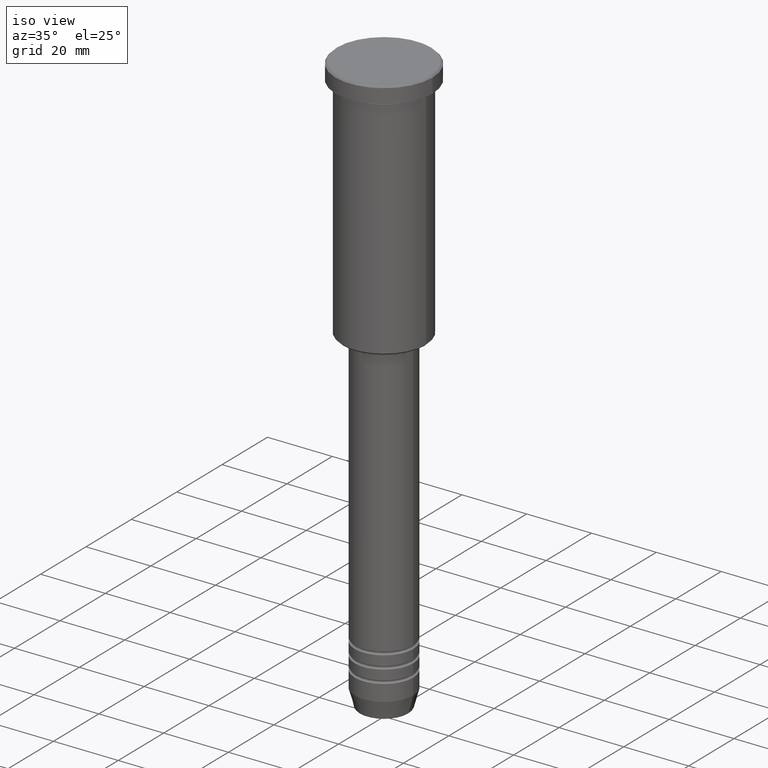
[diagram: clean part render]
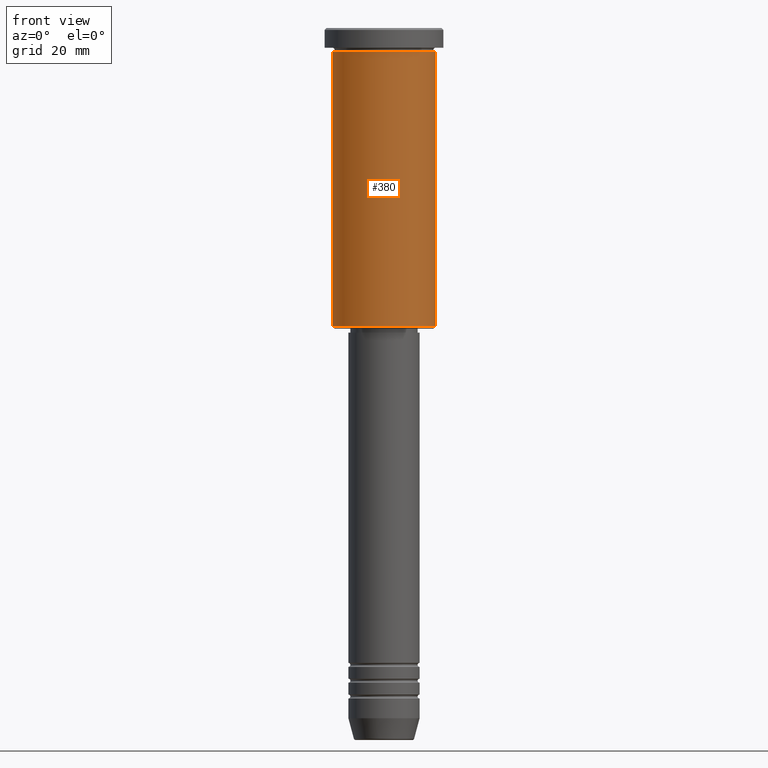
[diagram: tour spotlight — one face highlighted and labeled with its STEP entity id]
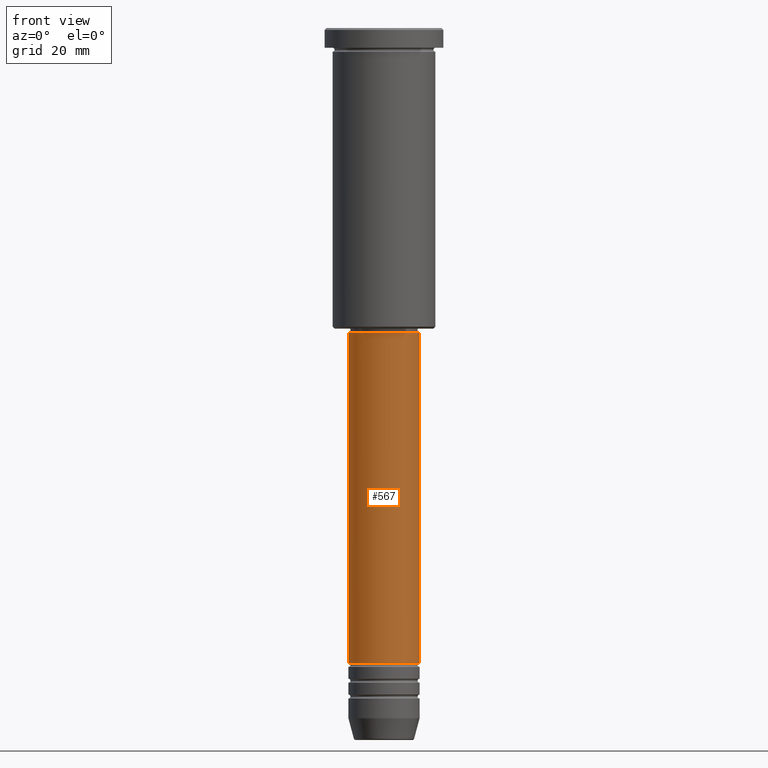
[diagram: tour spotlight — one face highlighted and labeled with its STEP entity id]
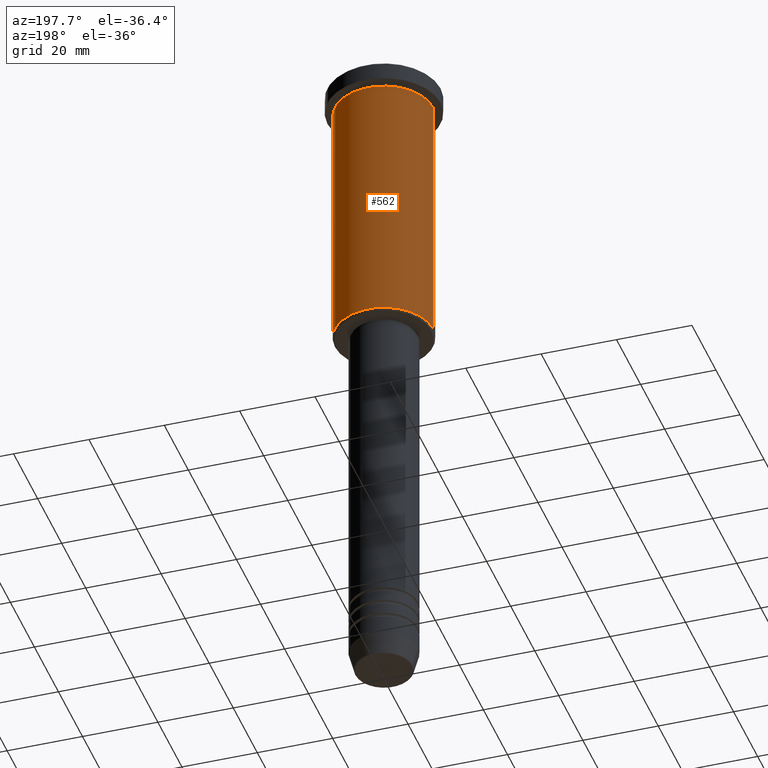
[diagram: tour spotlight — one face highlighted and labeled with its STEP entity id]
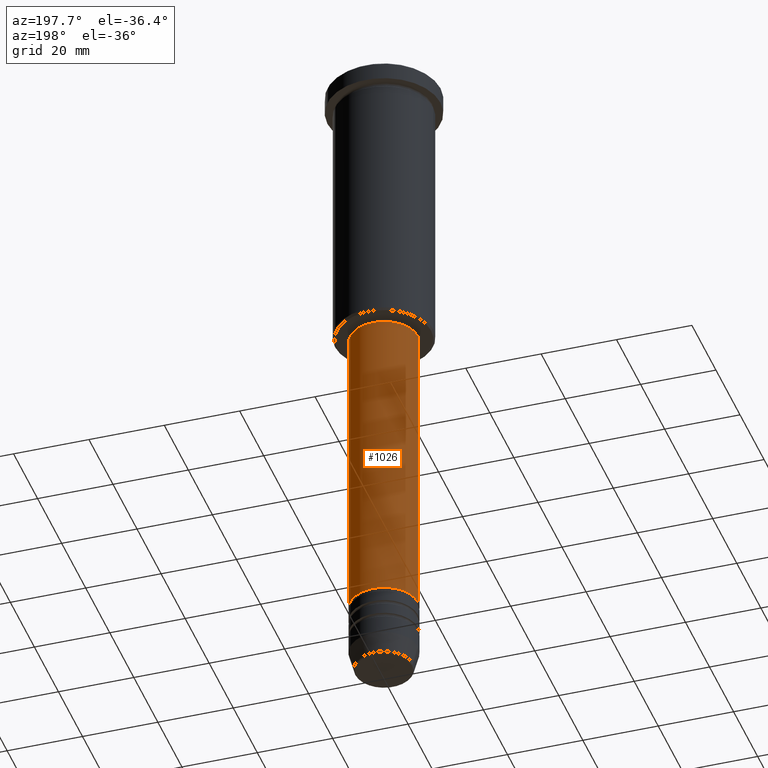
[diagram: tour spotlight — one face highlighted and labeled with its STEP entity id]
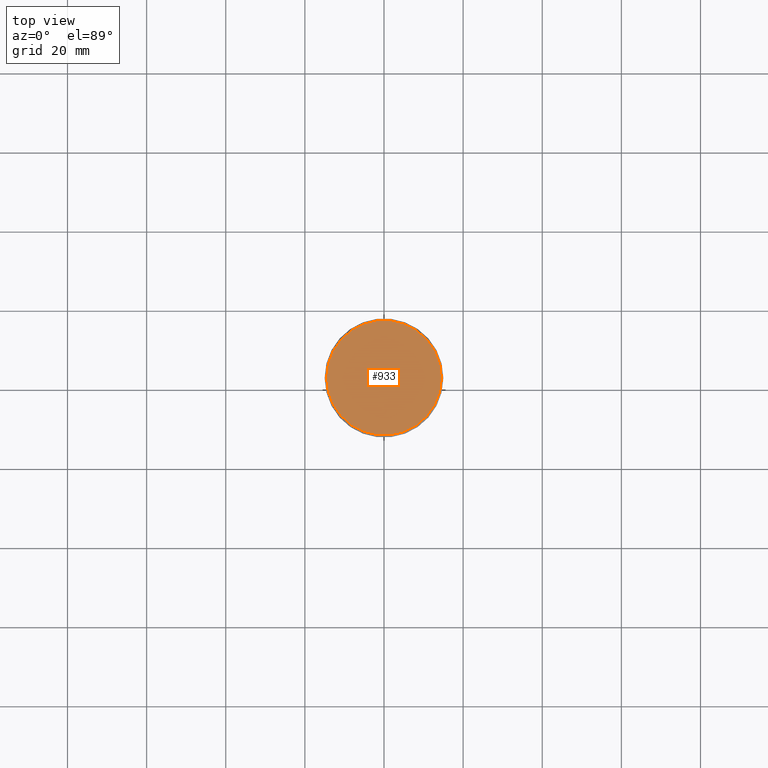
[diagram: tour spotlight — one face highlighted and labeled with its STEP entity id]
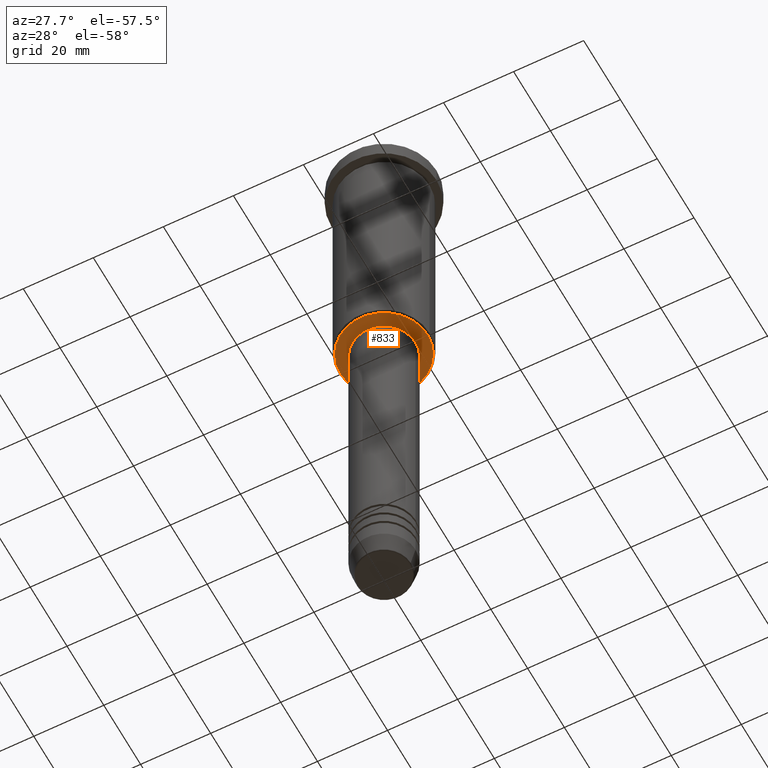
[diagram: tour spotlight — one face highlighted and labeled with its STEP entity id]
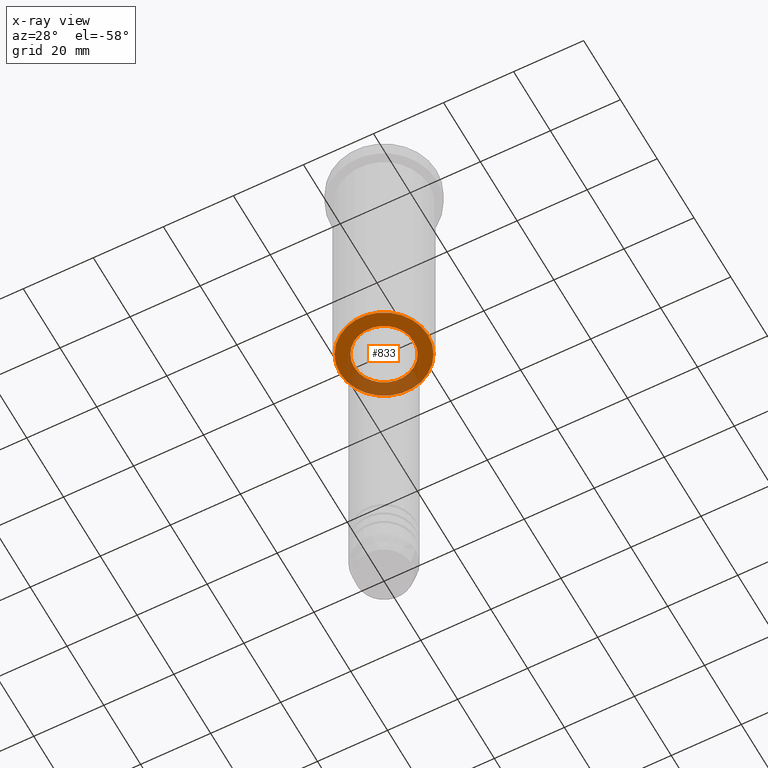
[diagram: x-ray of the same camera — body ghosted, this tour face saturated]
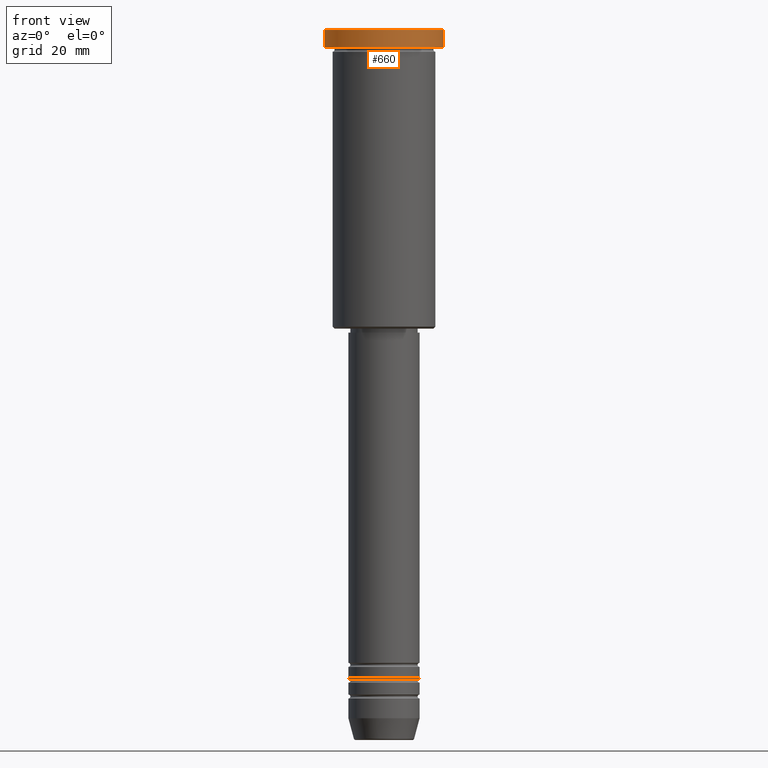
[diagram: tour spotlight — one face highlighted and labeled with its STEP entity id]
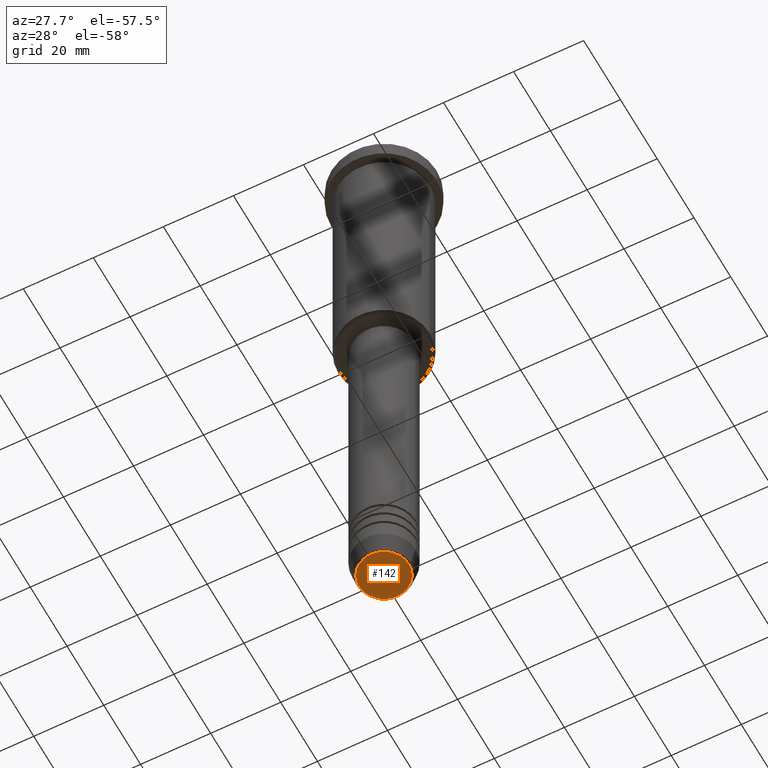
[diagram: tour spotlight — one face highlighted and labeled with its STEP entity id]
A machine part: a face-by-face anatomy tour. The part has 43 B-rep faces; the first image is the clean iso view, then the 8 largest visible faces are spotlighted one at a time (largest first), each with its STEP entity span.

Face 1 — front view, entity #380. In plain terms, the highlighted cylindrical surface (partial cylindrical patch) has radius 13 mm, axis along (-0, -0, 1).
Definition (entity closure, byte-faithful):
#74 = DIRECTION ( 'NONE',  ( -0.000000000000000000, -0.000000000000000000, 1.000000000000000000 ) ) ;
#79 = ORIENTED_EDGE ( 'NONE', *, *, #752, .T. ) ;
#109 = EDGE_CURVE ( 'NONE', #390, #455, #1153, .T. ) ;
#122 = EDGE_LOOP ( 'NONE', ( #1155, #926, #79, #381 ) ) ;
#225 = DIRECTION ( 'NONE',  ( -0.000000000000000000, -0.000000000000000000, 1.000000000000000000 ) ) ;
#345 = DIRECTION ( 'NONE',  ( -1.000000000000000000, 0.000000000000000000, 0.000000000000000000 ) ) ;
#380 = ADVANCED_FACE ( 'NONE', ( #569 ), #490, .T. ) ;
#381 = ORIENTED_EDGE ( 'NONE', *, *, #1086, .F. ) ;
#385 = CARTESIAN_POINT ( 'NONE',  ( -13.00000000000000178, 1.592040838891559293E-15, -75.50000000000001421 ) ) ;
#390 = VERTEX_POINT ( 'NONE', #385 ) ;
#455 = VERTEX_POINT ( 'NONE', #850 ) ;
#482 = CARTESIAN_POINT ( 'NONE',  ( 0.000000000000000000, 0.000000000000000000, 0.000000000000000000 ) ) ;
#490 = CYLINDRICAL_SURFACE ( 'NONE', #904, 13.00000000000000178 ) ;
#569 = FACE_OUTER_BOUND ( 'NONE', #122, .T. ) ;
#586 = DIRECTION ( 'NONE',  ( -0.000000000000000000, -0.000000000000000000, 1.000000000000000000 ) ) ;
#614 = CARTESIAN_POINT ( 'NONE',  ( -13.00000000000000178, 1.592040838891559293E-15, 0.000000000000000000 ) ) ;
#636 = VECTOR ( 'NONE', #1103, 1000.000000000000000 ) ;
#687 = CIRCLE ( 'NONE', #997, 13.00000000000000178 ) ;
#697 = CARTESIAN_POINT ( 'NONE',  ( 13.00000000000000178, 0.000000000000000000, 0.000000000000000000 ) ) ;
#711 = EDGE_CURVE ( 'NONE', #390, #726, #725, .T. ) ;
#725 = LINE ( 'NONE', #614, #636 ) ;
#726 = VERTEX_POINT ( 'NONE', #896 ) ;
#739 = CARTESIAN_POINT ( 'NONE',  ( 0.000000000000000000, 0.000000000000000000, -5.999999999999999112 ) ) ;
#752 = EDGE_CURVE ( 'NONE', #455, #1051, #1090, .T. ) ;
#809 = CARTESIAN_POINT ( 'NONE',  ( 0.000000000000000000, 0.000000000000000000, -75.50000000000001421 ) ) ;
#850 = CARTESIAN_POINT ( 'NONE',  ( 13.00000000000000178, 0.000000000000000000, -75.50000000000001421 ) ) ;
#896 = CARTESIAN_POINT ( 'NONE',  ( -13.00000000000000178, 1.592040838891559293E-15, -5.999999999999999112 ) ) ;
#904 = AXIS2_PLACEMENT_3D ( 'NONE', #482, #586, #930 ) ;
#926 = ORIENTED_EDGE ( 'NONE', *, *, #109, .T. ) ;
#930 = DIRECTION ( 'NONE',  ( 1.000000000000000000, 0.000000000000000000, 0.000000000000000000 ) ) ;
#980 = VECTOR ( 'NONE', #74, 1000.000000000000000 ) ;
#988 = AXIS2_PLACEMENT_3D ( 'NONE', #809, #1172, #345 ) ;
#997 = AXIS2_PLACEMENT_3D ( 'NONE', #739, #225, #1067 ) ;
#1051 = VERTEX_POINT ( 'NONE', #1162 ) ;
#1067 = DIRECTION ( 'NONE',  ( 1.000000000000000000, 0.000000000000000000, 0.000000000000000000 ) ) ;
#1086 = EDGE_CURVE ( 'NONE', #726, #1051, #687, .T. ) ;
#1090 = LINE ( 'NONE', #697, #980 ) ;
#1103 = DIRECTION ( 'NONE',  ( -0.000000000000000000, -0.000000000000000000, 1.000000000000000000 ) ) ;
#1153 = CIRCLE ( 'NONE', #988, 13.00000000000000178 ) ;
#1155 = ORIENTED_EDGE ( 'NONE', *, *, #711, .F. ) ;
#1162 = CARTESIAN_POINT ( 'NONE',  ( 13.00000000000000178, 0.000000000000000000, -5.999999999999999112 ) ) ;
#1172 = DIRECTION ( 'NONE',  ( -0.000000000000000000, -0.000000000000000000, 1.000000000000000000 ) ) ;

Face 2 — front view, entity #567. In plain terms, the highlighted cylindrical surface (edge-blend (fillet) strip) has radius 9 mm, axis along (-0, -0, 1).
Definition (entity closure, byte-faithful):
#21 = DIRECTION ( 'NONE',  ( -0.000000000000000000, -0.000000000000000000, 1.000000000000000000 ) ) ;
#48 = CARTESIAN_POINT ( 'NONE',  ( 8.999999999999998224, 0.000000000000000000, -77.00000000000004263 ) ) ;
#62 = VERTEX_POINT ( 'NONE', #48 ) ;
#98 = CIRCLE ( 'NONE', #283, 8.999999999999998224 ) ;
#170 = CARTESIAN_POINT ( 'NONE',  ( 9.000000000000001776, 0.000000000000000000, -160.5000000000000000 ) ) ;
#172 = FACE_OUTER_BOUND ( 'NONE', #462, .T. ) ;
#191 = ORIENTED_EDGE ( 'NONE', *, *, #346, .T. ) ;
#230 = CARTESIAN_POINT ( 'NONE',  ( -9.000000000000000000, 1.102182119232617714E-15, 0.000000000000000000 ) ) ;
#283 = AXIS2_PLACEMENT_3D ( 'NONE', #408, #666, #742 ) ;
#320 = VECTOR ( 'NONE', #21, 1000.000000000000000 ) ;
#327 = VERTEX_POINT ( 'NONE', #625 ) ;
#346 = EDGE_CURVE ( 'NONE', #857, #62, #351, .T. ) ;
#351 = LINE ( 'NONE', #499, #320 ) ;
#353 = CIRCLE ( 'NONE', #495, 9.000000000000001776 ) ;
#384 = DIRECTION ( 'NONE',  ( 1.000000000000000000, 0.000000000000000000, 0.000000000000000000 ) ) ;
#396 = EDGE_CURVE ( 'NONE', #1112, #62, #98, .T. ) ;
#408 = CARTESIAN_POINT ( 'NONE',  ( 0.000000000000000000, 0.000000000000000000, -77.00000000000004263 ) ) ;
#462 = EDGE_LOOP ( 'NONE', ( #928, #655, #191, #813 ) ) ;
#475 = EDGE_CURVE ( 'NONE', #327, #857, #353, .T. ) ;
#495 = AXIS2_PLACEMENT_3D ( 'NONE', #768, #582, #864 ) ;
#499 = CARTESIAN_POINT ( 'NONE',  ( 9.000000000000000000, 0.000000000000000000, 0.000000000000000000 ) ) ;
#527 = EDGE_CURVE ( 'NONE', #327, #1112, #801, .T. ) ;
#565 = DIRECTION ( 'NONE',  ( -0.000000000000000000, -0.000000000000000000, 1.000000000000000000 ) ) ;
#567 = ADVANCED_FACE ( 'NONE', ( #172 ), #815, .T. ) ;
#582 = DIRECTION ( 'NONE',  ( -0.000000000000000000, -0.000000000000000000, 1.000000000000000000 ) ) ;
#625 = CARTESIAN_POINT ( 'NONE',  ( -9.000000000000001776, 1.102182119232617911E-15, -160.5000000000000000 ) ) ;
#655 = ORIENTED_EDGE ( 'NONE', *, *, #475, .T. ) ;
#666 = DIRECTION ( 'NONE',  ( -0.000000000000000000, -0.000000000000000000, 1.000000000000000000 ) ) ;
#742 = DIRECTION ( 'NONE',  ( 1.000000000000000000, 0.000000000000000000, 0.000000000000000000 ) ) ;
#768 = CARTESIAN_POINT ( 'NONE',  ( 0.000000000000000000, 0.000000000000000000, -160.5000000000000000 ) ) ;
#793 = DIRECTION ( 'NONE',  ( -0.000000000000000000, -0.000000000000000000, 1.000000000000000000 ) ) ;
#801 = LINE ( 'NONE', #230, #957 ) ;
#813 = ORIENTED_EDGE ( 'NONE', *, *, #396, .F. ) ;
#815 = CYLINDRICAL_SURFACE ( 'NONE', #1182, 9.000000000000000000 ) ;
#857 = VERTEX_POINT ( 'NONE', #170 ) ;
#864 = DIRECTION ( 'NONE',  ( 1.000000000000000000, 0.000000000000000000, 0.000000000000000000 ) ) ;
#866 = CARTESIAN_POINT ( 'NONE',  ( -8.999999999999998224, 1.102182119232617714E-15, -77.00000000000004263 ) ) ;
#928 = ORIENTED_EDGE ( 'NONE', *, *, #527, .F. ) ;
#957 = VECTOR ( 'NONE', #793, 1000.000000000000000 ) ;
#1112 = VERTEX_POINT ( 'NONE', #866 ) ;
#1173 = CARTESIAN_POINT ( 'NONE',  ( 0.000000000000000000, 0.000000000000000000, 0.000000000000000000 ) ) ;
#1182 = AXIS2_PLACEMENT_3D ( 'NONE', #1173, #565, #384 ) ;

Face 3 — auxiliary view, entity #562. In plain terms, the highlighted cylindrical surface (partial cylindrical patch) has radius 13 mm, axis along (-0, -0, 1).
Definition (entity closure, byte-faithful):
#9 = CARTESIAN_POINT ( 'NONE',  ( 0.000000000000000000, 0.000000000000000000, 0.000000000000000000 ) ) ;
#66 = ORIENTED_EDGE ( 'NONE', *, *, #711, .T. ) ;
#74 = DIRECTION ( 'NONE',  ( -0.000000000000000000, -0.000000000000000000, 1.000000000000000000 ) ) ;
#96 = DIRECTION ( 'NONE',  ( -0.000000000000000000, -0.000000000000000000, 1.000000000000000000 ) ) ;
#163 = ORIENTED_EDGE ( 'NONE', *, *, #752, .F. ) ;
#187 = DIRECTION ( 'NONE',  ( -0.000000000000000000, -0.000000000000000000, 1.000000000000000000 ) ) ;
#217 = EDGE_CURVE ( 'NONE', #1051, #726, #559, .T. ) ;
#256 = DIRECTION ( 'NONE',  ( 1.000000000000000000, 0.000000000000000000, 0.000000000000000000 ) ) ;
#264 = CIRCLE ( 'NONE', #1121, 13.00000000000000178 ) ;
#267 = EDGE_LOOP ( 'NONE', ( #645, #66, #640, #163 ) ) ;
#357 = EDGE_CURVE ( 'NONE', #455, #390, #264, .T. ) ;
#385 = CARTESIAN_POINT ( 'NONE',  ( -13.00000000000000178, 1.592040838891559293E-15, -75.50000000000001421 ) ) ;
#390 = VERTEX_POINT ( 'NONE', #385 ) ;
#455 = VERTEX_POINT ( 'NONE', #850 ) ;
#559 = CIRCLE ( 'NONE', #623, 13.00000000000000178 ) ;
#562 = ADVANCED_FACE ( 'NONE', ( #1014 ), #651, .T. ) ;
#614 = CARTESIAN_POINT ( 'NONE',  ( -13.00000000000000178, 1.592040838891559293E-15, 0.000000000000000000 ) ) ;
#623 = AXIS2_PLACEMENT_3D ( 'NONE', #1037, #842, #662 ) ;
#636 = VECTOR ( 'NONE', #1103, 1000.000000000000000 ) ;
#640 = ORIENTED_EDGE ( 'NONE', *, *, #217, .F. ) ;
#645 = ORIENTED_EDGE ( 'NONE', *, *, #357, .T. ) ;
#651 = CYLINDRICAL_SURFACE ( 'NONE', #653, 13.00000000000000178 ) ;
#653 = AXIS2_PLACEMENT_3D ( 'NONE', #9, #187, #256 ) ;
#662 = DIRECTION ( 'NONE',  ( 1.000000000000000000, 0.000000000000000000, 0.000000000000000000 ) ) ;
#697 = CARTESIAN_POINT ( 'NONE',  ( 13.00000000000000178, 0.000000000000000000, 0.000000000000000000 ) ) ;
#711 = EDGE_CURVE ( 'NONE', #390, #726, #725, .T. ) ;
#725 = LINE ( 'NONE', #614, #636 ) ;
#726 = VERTEX_POINT ( 'NONE', #896 ) ;
#752 = EDGE_CURVE ( 'NONE', #455, #1051, #1090, .T. ) ;
#842 = DIRECTION ( 'NONE',  ( -0.000000000000000000, -0.000000000000000000, 1.000000000000000000 ) ) ;
#850 = CARTESIAN_POINT ( 'NONE',  ( 13.00000000000000178, 0.000000000000000000, -75.50000000000001421 ) ) ;
#896 = CARTESIAN_POINT ( 'NONE',  ( -13.00000000000000178, 1.592040838891559293E-15, -5.999999999999999112 ) ) ;
#944 = DIRECTION ( 'NONE',  ( -1.000000000000000000, 0.000000000000000000, 0.000000000000000000 ) ) ;
#949 = CARTESIAN_POINT ( 'NONE',  ( 0.000000000000000000, 0.000000000000000000, -75.50000000000001421 ) ) ;
#980 = VECTOR ( 'NONE', #74, 1000.000000000000000 ) ;
#1014 = FACE_OUTER_BOUND ( 'NONE', #267, .T. ) ;
#1037 = CARTESIAN_POINT ( 'NONE',  ( 0.000000000000000000, 0.000000000000000000, -5.999999999999999112 ) ) ;
#1051 = VERTEX_POINT ( 'NONE', #1162 ) ;
#1090 = LINE ( 'NONE', #697, #980 ) ;
#1103 = DIRECTION ( 'NONE',  ( -0.000000000000000000, -0.000000000000000000, 1.000000000000000000 ) ) ;
#1121 = AXIS2_PLACEMENT_3D ( 'NONE', #949, #96, #944 ) ;
#1162 = CARTESIAN_POINT ( 'NONE',  ( 13.00000000000000178, 0.000000000000000000, -5.999999999999999112 ) ) ;

Face 4 — auxiliary view, entity #1026. In plain terms, the highlighted cylindrical surface (edge-blend (fillet) strip) has radius 9 mm, axis along (-0, -0, 1).
Definition (entity closure, byte-faithful):
#21 = DIRECTION ( 'NONE',  ( -0.000000000000000000, -0.000000000000000000, 1.000000000000000000 ) ) ;
#48 = CARTESIAN_POINT ( 'NONE',  ( 8.999999999999998224, 0.000000000000000000, -77.00000000000004263 ) ) ;
#62 = VERTEX_POINT ( 'NONE', #48 ) ;
#90 = ORIENTED_EDGE ( 'NONE', *, *, #1145, .F. ) ;
#99 = FACE_OUTER_BOUND ( 'NONE', #552, .T. ) ;
#132 = CARTESIAN_POINT ( 'NONE',  ( 0.000000000000000000, 0.000000000000000000, 0.000000000000000000 ) ) ;
#153 = ORIENTED_EDGE ( 'NONE', *, *, #527, .T. ) ;
#170 = CARTESIAN_POINT ( 'NONE',  ( 9.000000000000001776, 0.000000000000000000, -160.5000000000000000 ) ) ;
#193 = DIRECTION ( 'NONE',  ( -0.000000000000000000, -0.000000000000000000, 1.000000000000000000 ) ) ;
#223 = ORIENTED_EDGE ( 'NONE', *, *, #346, .F. ) ;
#230 = CARTESIAN_POINT ( 'NONE',  ( -9.000000000000000000, 1.102182119232617714E-15, 0.000000000000000000 ) ) ;
#304 = DIRECTION ( 'NONE',  ( 1.000000000000000000, 0.000000000000000000, 0.000000000000000000 ) ) ;
#320 = VECTOR ( 'NONE', #21, 1000.000000000000000 ) ;
#327 = VERTEX_POINT ( 'NONE', #625 ) ;
#346 = EDGE_CURVE ( 'NONE', #857, #62, #351, .T. ) ;
#351 = LINE ( 'NONE', #499, #320 ) ;
#407 = EDGE_CURVE ( 'NONE', #857, #327, #1058, .T. ) ;
#424 = ORIENTED_EDGE ( 'NONE', *, *, #407, .T. ) ;
#499 = CARTESIAN_POINT ( 'NONE',  ( 9.000000000000000000, 0.000000000000000000, 0.000000000000000000 ) ) ;
#527 = EDGE_CURVE ( 'NONE', #327, #1112, #801, .T. ) ;
#552 = EDGE_LOOP ( 'NONE', ( #424, #153, #90, #223 ) ) ;
#596 = DIRECTION ( 'NONE',  ( -0.000000000000000000, -0.000000000000000000, 1.000000000000000000 ) ) ;
#625 = CARTESIAN_POINT ( 'NONE',  ( -9.000000000000001776, 1.102182119232617911E-15, -160.5000000000000000 ) ) ;
#626 = CARTESIAN_POINT ( 'NONE',  ( 0.000000000000000000, 0.000000000000000000, -77.00000000000004263 ) ) ;
#637 = CIRCLE ( 'NONE', #1148, 8.999999999999998224 ) ;
#793 = DIRECTION ( 'NONE',  ( -0.000000000000000000, -0.000000000000000000, 1.000000000000000000 ) ) ;
#801 = LINE ( 'NONE', #230, #957 ) ;
#830 = AXIS2_PLACEMENT_3D ( 'NONE', #1114, #193, #304 ) ;
#834 = DIRECTION ( 'NONE',  ( -0.000000000000000000, -0.000000000000000000, 1.000000000000000000 ) ) ;
#847 = CYLINDRICAL_SURFACE ( 'NONE', #1166, 9.000000000000000000 ) ;
#857 = VERTEX_POINT ( 'NONE', #170 ) ;
#866 = CARTESIAN_POINT ( 'NONE',  ( -8.999999999999998224, 1.102182119232617714E-15, -77.00000000000004263 ) ) ;
#957 = VECTOR ( 'NONE', #793, 1000.000000000000000 ) ;
#967 = DIRECTION ( 'NONE',  ( 1.000000000000000000, 0.000000000000000000, 0.000000000000000000 ) ) ;
#975 = DIRECTION ( 'NONE',  ( 1.000000000000000000, 0.000000000000000000, 0.000000000000000000 ) ) ;
#1026 = ADVANCED_FACE ( 'NONE', ( #99 ), #847, .T. ) ;
#1058 = CIRCLE ( 'NONE', #830, 9.000000000000001776 ) ;
#1112 = VERTEX_POINT ( 'NONE', #866 ) ;
#1114 = CARTESIAN_POINT ( 'NONE',  ( 0.000000000000000000, 0.000000000000000000, -160.5000000000000000 ) ) ;
#1145 = EDGE_CURVE ( 'NONE', #62, #1112, #637, .T. ) ;
#1148 = AXIS2_PLACEMENT_3D ( 'NONE', #626, #596, #967 ) ;
#1166 = AXIS2_PLACEMENT_3D ( 'NONE', #132, #834, #975 ) ;

Face 5 — top view, entity #933. In plain terms, the highlighted planar face has unit normal (0, -0, 1).
Definition (entity closure, byte-faithful):
#27 = CARTESIAN_POINT ( 'NONE',  ( -14.50000000000001066, 0.000000000000000000, 0.000000000000000000 ) ) ;
#32 = CIRCLE ( 'NONE', #1013, 14.50000000000001066 ) ;
#147 = ORIENTED_EDGE ( 'NONE', *, *, #468, .T. ) ;
#188 = PLANE ( 'NONE',  #960 ) ;
#199 = FACE_OUTER_BOUND ( 'NONE', #473, .T. ) ;
#211 = DIRECTION ( 'NONE',  ( -0.000000000000000000, -0.000000000000000000, 1.000000000000000000 ) ) ;
#280 = DIRECTION ( 'NONE',  ( 1.000000000000000000, 0.000000000000000000, 0.000000000000000000 ) ) ;
#383 = VERTEX_POINT ( 'NONE', #27 ) ;
#468 = EDGE_CURVE ( 'NONE', #383, #784, #32, .T. ) ;
#473 = EDGE_LOOP ( 'NONE', ( #147, #541 ) ) ;
#541 = ORIENTED_EDGE ( 'NONE', *, *, #729, .T. ) ;
#570 = DIRECTION ( 'NONE',  ( 1.000000000000000000, 0.000000000000000000, 0.000000000000000000 ) ) ;
#576 = DIRECTION ( 'NONE',  ( 1.000000000000000000, 0.000000000000000000, 0.000000000000000000 ) ) ;
#659 = CARTESIAN_POINT ( 'NONE',  ( 0.000000000000000000, 0.000000000000000000, 0.000000000000000000 ) ) ;
#729 = EDGE_CURVE ( 'NONE', #784, #383, #1041, .T. ) ;
#760 = AXIS2_PLACEMENT_3D ( 'NONE', #797, #1156, #280 ) ;
#784 = VERTEX_POINT ( 'NONE', #829 ) ;
#797 = CARTESIAN_POINT ( 'NONE',  ( 0.000000000000000000, 0.000000000000000000, 0.000000000000000000 ) ) ;
#829 = CARTESIAN_POINT ( 'NONE',  ( 14.50000000000001066, 1.806354028742346591E-15, 0.000000000000000000 ) ) ;
#931 = DIRECTION ( 'NONE',  ( 0.000000000000000000, -0.000000000000000000, 1.000000000000000000 ) ) ;
#933 = ADVANCED_FACE ( 'NONE', ( #199 ), #188, .T. ) ;
#960 = AXIS2_PLACEMENT_3D ( 'NONE', #659, #931, #570 ) ;
#1013 = AXIS2_PLACEMENT_3D ( 'NONE', #1040, #211, #576 ) ;
#1040 = CARTESIAN_POINT ( 'NONE',  ( 0.000000000000000000, 0.000000000000000000, 0.000000000000000000 ) ) ;
#1041 = CIRCLE ( 'NONE', #760, 14.50000000000001066 ) ;
#1156 = DIRECTION ( 'NONE',  ( -0.000000000000000000, -0.000000000000000000, 1.000000000000000000 ) ) ;

Face 6 — auxiliary view, entity #833. An x-ray twin of the same camera follows (body ghosted, this face saturated) — the face is partly hidden behind the body. In plain terms, the highlighted planar face has unit normal (0, 0, -1).
Definition (entity closure, byte-faithful):
#25 = EDGE_CURVE ( 'NONE', #572, #1033, #276, .T. ) ;
#82 = EDGE_CURVE ( 'NONE', #819, #903, #727, .T. ) ;
#87 = AXIS2_PLACEMENT_3D ( 'NONE', #865, #120, #741 ) ;
#88 = CARTESIAN_POINT ( 'NONE',  ( 0.000000000000000000, 0.000000000000000000, -76.00000000000001421 ) ) ;
#91 = EDGE_CURVE ( 'NONE', #903, #819, #528, .T. ) ;
#103 = CARTESIAN_POINT ( 'NONE',  ( 12.49999999999998401, 0.000000000000000000, -76.00000000000001421 ) ) ;
#106 = FACE_OUTER_BOUND ( 'NONE', #621, .T. ) ;
#120 = DIRECTION ( 'NONE',  ( 0.000000000000000000, 0.000000000000000000, -1.000000000000000000 ) ) ;
#135 = CARTESIAN_POINT ( 'NONE',  ( 0.000000000000000000, 0.000000000000000000, -76.00000000000001421 ) ) ;
#155 = AXIS2_PLACEMENT_3D ( 'NONE', #135, #800, #874 ) ;
#156 = DIRECTION ( 'NONE',  ( -0.000000000000000000, -0.000000000000000000, 1.000000000000000000 ) ) ;
#235 = ORIENTED_EDGE ( 'NONE', *, *, #91, .T. ) ;
#270 = DIRECTION ( 'NONE',  ( 1.000000000000000000, 0.000000000000000000, 0.000000000000000000 ) ) ;
#276 = CIRCLE ( 'NONE', #155, 12.49999999999998401 ) ;
#306 = EDGE_LOOP ( 'NONE', ( #235, #979 ) ) ;
#315 = CARTESIAN_POINT ( 'NONE',  ( -8.500000000000000000, 1.040949779275250140E-15, -76.00000000000001421 ) ) ;
#364 = FACE_BOUND ( 'NONE', #306, .T. ) ;
#452 = DIRECTION ( 'NONE',  ( 1.000000000000000000, 0.000000000000000000, 0.000000000000000000 ) ) ;
#479 = DIRECTION ( 'NONE',  ( 0.000000000000000000, 0.000000000000000000, -1.000000000000000000 ) ) ;
#508 = ORIENTED_EDGE ( 'NONE', *, *, #25, .T. ) ;
#514 = CARTESIAN_POINT ( 'NONE',  ( 8.500000000000000000, 0.000000000000000000, -76.00000000000001421 ) ) ;
#517 = AXIS2_PLACEMENT_3D ( 'NONE', #840, #479, #854 ) ;
#528 = CIRCLE ( 'NONE', #606, 8.500000000000000000 ) ;
#537 = DIRECTION ( 'NONE',  ( -0.000000000000000000, -0.000000000000000000, 1.000000000000000000 ) ) ;
#540 = CIRCLE ( 'NONE', #87, 12.49999999999998401 ) ;
#572 = VERTEX_POINT ( 'NONE', #103 ) ;
#606 = AXIS2_PLACEMENT_3D ( 'NONE', #998, #156, #452 ) ;
#621 = EDGE_LOOP ( 'NONE', ( #508, #638 ) ) ;
#638 = ORIENTED_EDGE ( 'NONE', *, *, #983, .T. ) ;
#727 = CIRCLE ( 'NONE', #775, 8.500000000000000000 ) ;
#728 = PLANE ( 'NONE',  #517 ) ;
#741 = DIRECTION ( 'NONE',  ( -1.000000000000000000, 0.000000000000000000, 0.000000000000000000 ) ) ;
#775 = AXIS2_PLACEMENT_3D ( 'NONE', #88, #537, #270 ) ;
#800 = DIRECTION ( 'NONE',  ( 0.000000000000000000, 0.000000000000000000, -1.000000000000000000 ) ) ;
#819 = VERTEX_POINT ( 'NONE', #315 ) ;
#833 = ADVANCED_FACE ( 'NONE', ( #106, #364 ), #728, .T. ) ;
#840 = CARTESIAN_POINT ( 'NONE',  ( 0.000000000000000000, 13.00000000000000000, -76.00000000000001421 ) ) ;
#854 = DIRECTION ( 'NONE',  ( -1.000000000000000000, 0.000000000000000000, -0.000000000000000000 ) ) ;
#865 = CARTESIAN_POINT ( 'NONE',  ( 0.000000000000000000, 0.000000000000000000, -76.00000000000001421 ) ) ;
#874 = DIRECTION ( 'NONE',  ( -1.000000000000000000, 0.000000000000000000, 0.000000000000000000 ) ) ;
#903 = VERTEX_POINT ( 'NONE', #514 ) ;
#979 = ORIENTED_EDGE ( 'NONE', *, *, #82, .T. ) ;
#983 = EDGE_CURVE ( 'NONE', #1033, #572, #540, .T. ) ;
#998 = CARTESIAN_POINT ( 'NONE',  ( 0.000000000000000000, 0.000000000000000000, -76.00000000000001421 ) ) ;
#1033 = VERTEX_POINT ( 'NONE', #1092 ) ;
#1092 = CARTESIAN_POINT ( 'NONE',  ( -12.49999999999998401, 1.561424668912874322E-15, -76.00000000000001421 ) ) ;

Face 7 — front view, entity #660. In plain terms, the highlighted cylindrical surface (partial cylindrical patch) has radius 15 mm, axis along (-0, -0, 1).
Definition (entity closure, byte-faithful):
#2 = CARTESIAN_POINT ( 'NONE',  ( 0.000000000000000000, 0.000000000000000000, -4.999999999999999112 ) ) ;
#3 = CARTESIAN_POINT ( 'NONE',  ( -15.00000000000000000, 1.836970198721029589E-15, -0.5000000000000107692 ) ) ;
#5 = FACE_OUTER_BOUND ( 'NONE', #730, .T. ) ;
#70 = CARTESIAN_POINT ( 'NONE',  ( 0.000000000000000000, 0.000000000000000000, 0.000000000000000000 ) ) ;
#80 = DIRECTION ( 'NONE',  ( 1.000000000000000000, 0.000000000000000000, 0.000000000000000000 ) ) ;
#133 = EDGE_CURVE ( 'NONE', #1116, #1021, #466, .T. ) ;
#134 = DIRECTION ( 'NONE',  ( -0.000000000000000000, -0.000000000000000000, 1.000000000000000000 ) ) ;
#143 = VECTOR ( 'NONE', #134, 1000.000000000000000 ) ;
#162 = CARTESIAN_POINT ( 'NONE',  ( 0.000000000000000000, 0.000000000000000000, -0.5000000000000107692 ) ) ;
#167 = ORIENTED_EDGE ( 'NONE', *, *, #133, .T. ) ;
#180 = CYLINDRICAL_SURFACE ( 'NONE', #889, 15.00000000000000000 ) ;
#194 = AXIS2_PLACEMENT_3D ( 'NONE', #2, #1177, #80 ) ;
#272 = CIRCLE ( 'NONE', #477, 15.00000000000000000 ) ;
#279 = EDGE_CURVE ( 'NONE', #1056, #795, #272, .T. ) ;
#312 = CARTESIAN_POINT ( 'NONE',  ( 15.00000000000000000, 0.000000000000000000, 0.000000000000000000 ) ) ;
#322 = VECTOR ( 'NONE', #1144, 1000.000000000000000 ) ;
#365 = DIRECTION ( 'NONE',  ( 1.000000000000000000, 0.000000000000000000, 0.000000000000000000 ) ) ;
#447 = ORIENTED_EDGE ( 'NONE', *, *, #648, .F. ) ;
#466 = CIRCLE ( 'NONE', #194, 15.00000000000000000 ) ;
#477 = AXIS2_PLACEMENT_3D ( 'NONE', #162, #502, #677 ) ;
#502 = DIRECTION ( 'NONE',  ( 0.000000000000000000, 0.000000000000000000, -1.000000000000000000 ) ) ;
#553 = DIRECTION ( 'NONE',  ( -0.000000000000000000, -0.000000000000000000, 1.000000000000000000 ) ) ;
#648 = EDGE_CURVE ( 'NONE', #1116, #795, #879, .T. ) ;
#660 = ADVANCED_FACE ( 'NONE', ( #5 ), #180, .T. ) ;
#677 = DIRECTION ( 'NONE',  ( 1.000000000000000000, 0.000000000000000000, 0.000000000000000000 ) ) ;
#713 = CARTESIAN_POINT ( 'NONE',  ( 15.00000000000000000, 0.000000000000000000, -0.5000000000000107692 ) ) ;
#730 = EDGE_LOOP ( 'NONE', ( #447, #167, #947, #744 ) ) ;
#744 = ORIENTED_EDGE ( 'NONE', *, *, #279, .T. ) ;
#783 = LINE ( 'NONE', #312, #322 ) ;
#795 = VERTEX_POINT ( 'NONE', #3 ) ;
#835 = CARTESIAN_POINT ( 'NONE',  ( 15.00000000000000000, 0.000000000000000000, -4.999999999999999112 ) ) ;
#879 = LINE ( 'NONE', #1140, #143 ) ;
#889 = AXIS2_PLACEMENT_3D ( 'NONE', #70, #553, #365 ) ;
#947 = ORIENTED_EDGE ( 'NONE', *, *, #1054, .T. ) ;
#1021 = VERTEX_POINT ( 'NONE', #835 ) ;
#1054 = EDGE_CURVE ( 'NONE', #1021, #1056, #783, .T. ) ;
#1055 = CARTESIAN_POINT ( 'NONE',  ( -15.00000000000000000, 1.836970198721029589E-15, -4.999999999999999112 ) ) ;
#1056 = VERTEX_POINT ( 'NONE', #713 ) ;
#1116 = VERTEX_POINT ( 'NONE', #1055 ) ;
#1140 = CARTESIAN_POINT ( 'NONE',  ( -15.00000000000000000, 1.836970198721029589E-15, 0.000000000000000000 ) ) ;
#1144 = DIRECTION ( 'NONE',  ( -0.000000000000000000, -0.000000000000000000, 1.000000000000000000 ) ) ;
#1177 = DIRECTION ( 'NONE',  ( -0.000000000000000000, -0.000000000000000000, 1.000000000000000000 ) ) ;

Face 8 — auxiliary view, entity #142. In plain terms, the highlighted planar face has unit normal (0, -0, 1).
Definition (entity closure, byte-faithful):
#58 = EDGE_CURVE ( 'NONE', #1091, #526, #818, .T. ) ;
#85 = AXIS2_PLACEMENT_3D ( 'NONE', #776, #955, #682 ) ;
#126 = DIRECTION ( 'NONE',  ( 1.000000000000000000, 0.000000000000000000, 0.000000000000000000 ) ) ;
#142 = ADVANCED_FACE ( 'NONE', ( #828 ), #277, .F. ) ;
#197 = DIRECTION ( 'NONE',  ( 0.000000000000000000, -0.000000000000000000, 1.000000000000000000 ) ) ;
#277 = PLANE ( 'NONE',  #647 ) ;
#292 = ORIENTED_EDGE ( 'NONE', *, *, #363, .T. ) ;
#300 = DIRECTION ( 'NONE',  ( 1.000000000000000000, 0.000000000000000000, 0.000000000000000000 ) ) ;
#352 = ORIENTED_EDGE ( 'NONE', *, *, #58, .T. ) ;
#363 = EDGE_CURVE ( 'NONE', #526, #1091, #635, .T. ) ;
#510 = CARTESIAN_POINT ( 'NONE',  ( 0.000000000000000000, 0.000000000000000000, -180.0000000000000000 ) ) ;
#526 = VERTEX_POINT ( 'NONE', #965 ) ;
#635 = CIRCLE ( 'NONE', #85, 7.142615947639352036 ) ;
#647 = AXIS2_PLACEMENT_3D ( 'NONE', #649, #197, #300 ) ;
#649 = CARTESIAN_POINT ( 'NONE',  ( 0.000000000000000000, 0.000000000000000000, -180.0000000000000000 ) ) ;
#682 = DIRECTION ( 'NONE',  ( 1.000000000000000000, 0.000000000000000000, 0.000000000000000000 ) ) ;
#776 = CARTESIAN_POINT ( 'NONE',  ( 0.000000000000000000, 0.000000000000000000, -180.0000000000000000 ) ) ;
#818 = CIRCLE ( 'NONE', #1100, 7.142615947639352036 ) ;
#823 = CARTESIAN_POINT ( 'NONE',  ( 7.142615947639352036, 0.000000000000000000, -180.0000000000000000 ) ) ;
#828 = FACE_OUTER_BOUND ( 'NONE', #915, .T. ) ;
#915 = EDGE_LOOP ( 'NONE', ( #352, #292 ) ) ;
#955 = DIRECTION ( 'NONE',  ( 0.000000000000000000, 0.000000000000000000, -1.000000000000000000 ) ) ;
#965 = CARTESIAN_POINT ( 'NONE',  ( -7.142615947639352036, 9.042911250660041322E-16, -180.0000000000000000 ) ) ;
#1091 = VERTEX_POINT ( 'NONE', #823 ) ;
#1100 = AXIS2_PLACEMENT_3D ( 'NONE', #510, #1141, #126 ) ;
#1141 = DIRECTION ( 'NONE',  ( 0.000000000000000000, 0.000000000000000000, -1.000000000000000000 ) ) ;